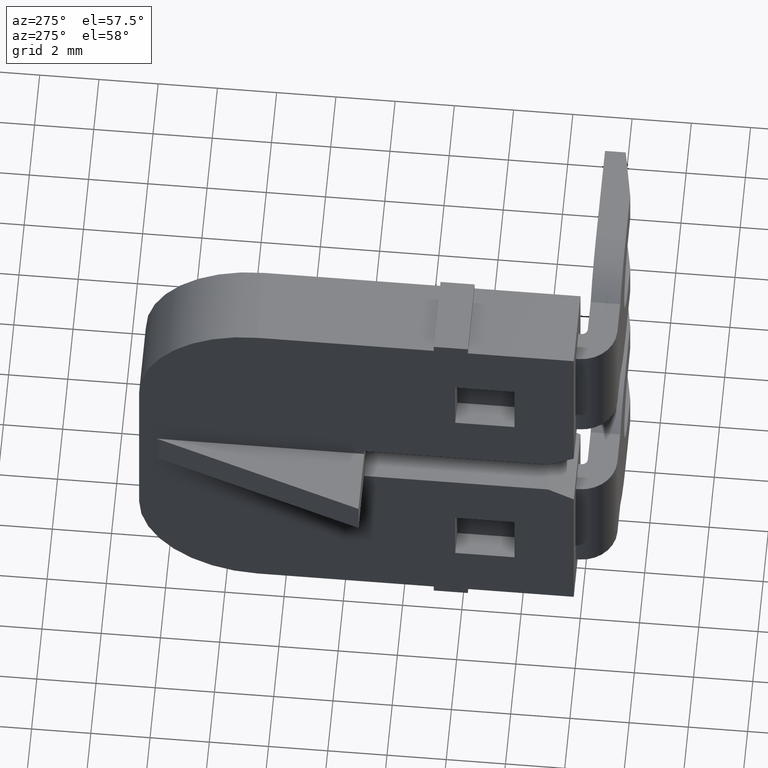
[diagram: clean part render]
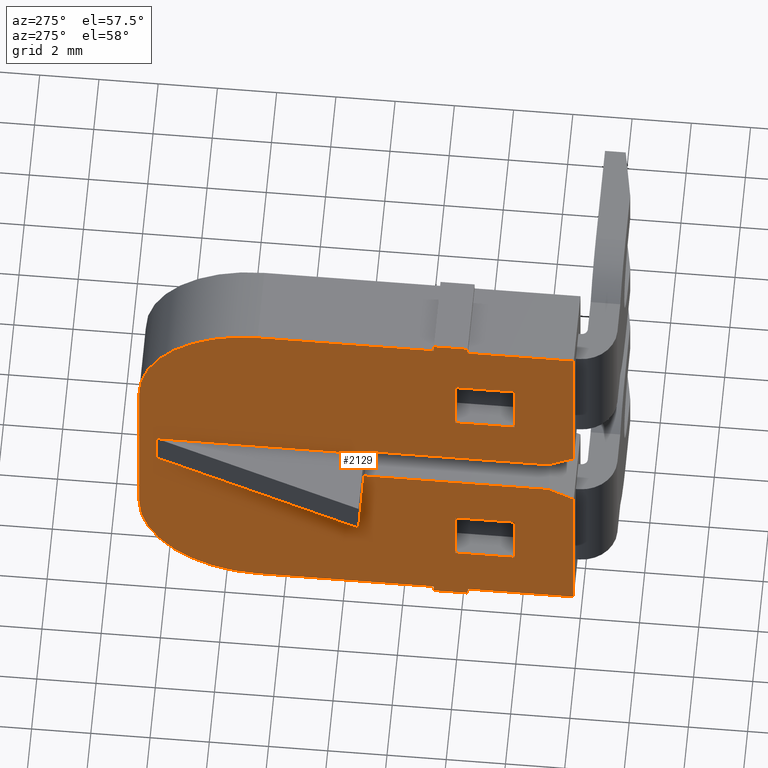
[diagram: same view with one face highlighted and labeled with its STEP entity id]
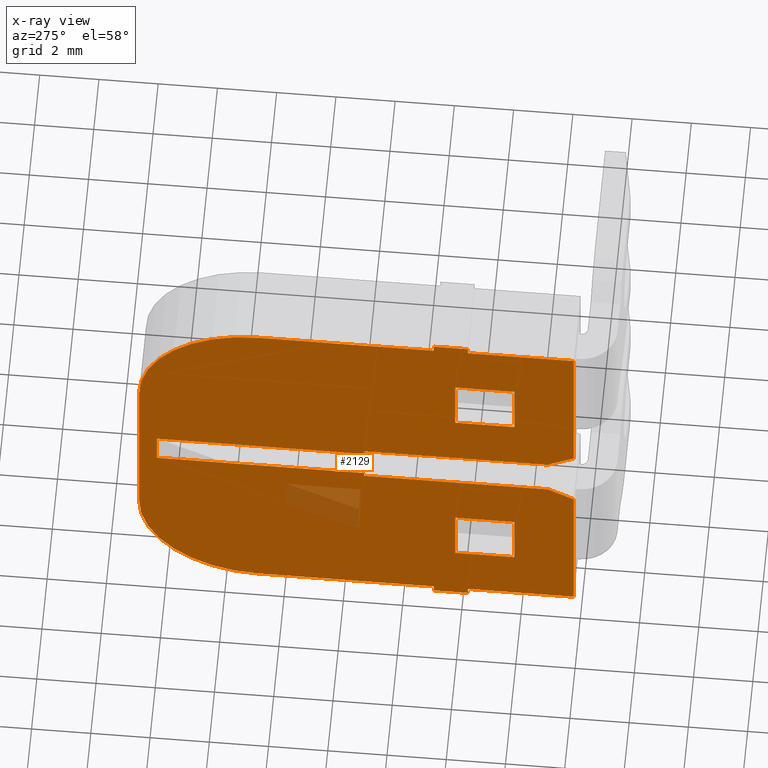
[diagram: x-ray of the same camera — body ghosted, the highlighted face saturated]
A machine part, auxiliary view. The second image highlights one B-rep face of the part: STEP entity #2129.
The next image is the same camera in x-ray: the body ghosted, the highlighted face saturated — about 2% of this face is hidden behind the body in this view.
In plain terms, the highlighted planar face has unit normal (1, 0, -0).
Its self-contained STEP definition (entity closure, byte-faithful):
#1 = LINE ( 'NONE', #66, #764 ) ;
#10 = DIRECTION ( 'NONE',  ( 3.538835890992685300E-015, -1.000000000000000000, -1.096746120591573800E-016 ) ) ;
#28 = LINE ( 'NONE', #37, #744 ) ;
#37 = CARTESIAN_POINT ( 'NONE',  ( 1472.445209356659900, 1087.334526901996000, 0.5749999999999999600 ) ) ;
#53 = DIRECTION ( 'NONE',  ( 3.250333119651810100E-015, -2.521813793386570200E-016, 1.000000000000000000 ) ) ;
#62 = CARTESIAN_POINT ( 'NONE',  ( 1472.445209356659900, 1094.934526901996200, 2.949999999999999700 ) ) ;
#66 = CARTESIAN_POINT ( 'NONE',  ( 1472.445209356664000, 1080.259529724810100, 7.349999999999999600 ) ) ;
#77 = LINE ( 'NONE', #78, #666 ) ;
#78 = CARTESIAN_POINT ( 'NONE',  ( 1472.445209356659900, 1094.934526901996200, -7.399999999999999500 ) ) ;
#79 = DIRECTION ( 'NONE',  ( 3.538835890992685300E-015, -1.000000000000000000, 7.422753022654887400E-029 ) ) ;
#83 = LINE ( 'NONE', #62, #749 ) ;
#88 = DIRECTION ( 'NONE',  ( -3.538835890992685300E-015, 1.000000000000000000, 1.150239550150604000E-029 ) ) ;
#100 = LINE ( 'NONE', #139, #689 ) ;
#101 = DIRECTION ( 'NONE',  ( 3.663735981263015800E-015, -1.000000000000000000, -1.096746120591567900E-016 ) ) ;
#104 = LINE ( 'NONE', #118, #460 ) ;
#110 = LINE ( 'NONE', #119, #765 ) ;
#112 = DIRECTION ( 'NONE',  ( 4.798054992358783100E-015, -0.8660254037844383700, 0.5000000000000003300 ) ) ;
#118 = CARTESIAN_POINT ( 'NONE',  ( 1472.445209356664000, 1080.259529724810100, 1.250000000000000000 ) ) ;
#119 = CARTESIAN_POINT ( 'NONE',  ( 1472.445209356659900, 1094.934526901996200, 0.7500000000000000000 ) ) ;
#123 = CARTESIAN_POINT ( 'NONE',  ( 1472.445209356659900, 1082.259529724810100, 5.150000000000000400 ) ) ;
#125 = CARTESIAN_POINT ( 'NONE',  ( 1472.445209356659900, 1090.934526901996200, 3.350000000000000100 ) ) ;
#131 = DIRECTION ( 'NONE',  ( 3.538835890992685300E-015, -1.000000000000000000, -1.225863708862687000E-029 ) ) ;
#139 = CARTESIAN_POINT ( 'NONE',  ( 1472.445209356659900, 1094.934526901996200, 7.349999999999999600 ) ) ;
#148 = CARTESIAN_POINT ( 'NONE',  ( 1472.445209356659900, 1087.334526901996000, -0.6249999999999987800 ) ) ;
#149 = CARTESIAN_POINT ( 'NONE',  ( 1472.445209356659900, 1082.259529724810100, 2.949999999999999700 ) ) ;
#150 = DIRECTION ( 'NONE',  ( -1.000000000000000000, -3.538835890992685300E-015, 3.497202527569245500E-015 ) ) ;
#154 = CARTESIAN_POINT ( 'NONE',  ( 1472.445209356659900, 1082.259529724810100, -3.000000000000104800 ) ) ;
#159 = CARTESIAN_POINT ( 'NONE',  ( 1472.445209356659900, 1090.934526901996200, -7.400000000000000400 ) ) ;
#165 = CARTESIAN_POINT ( 'NONE',  ( 1472.445209356659900, 1080.259529724810100, 7.349999999999999600 ) ) ;
#168 = CARTESIAN_POINT ( 'NONE',  ( 1472.445209356659900, 1082.259529724810100, -5.200000000000110300 ) ) ;
#173 = CARTESIAN_POINT ( 'NONE',  ( 1472.445209356659900, 1094.334526901996000, -0.6250000000000007800 ) ) ;
#174 = CARTESIAN_POINT ( 'NONE',  ( 1472.445209356659900, 1094.934526901996200, 3.350000000000009400 ) ) ;
#183 = CARTESIAN_POINT ( 'NONE',  ( 1472.445209356664000, 1080.259529724810100, 1.250000000000000000 ) ) ;
#188 = DIRECTION ( 'NONE',  ( 0.0000000000000000000, 1.000000000000000000, 8.673617379884027600E-016 ) ) ;
#190 = CARTESIAN_POINT ( 'NONE',  ( 1472.445209356659900, 1087.334526901996000, 0.7500000000000000000 ) ) ;
#200 = CARTESIAN_POINT ( 'NONE',  ( 1472.445209356659900, 1083.834526901990100, 7.349999999999999600 ) ) ;
#203 = CARTESIAN_POINT ( 'NONE',  ( 1472.445209356664000, 1080.259529724810100, -1.300000000000000000 ) ) ;
#214 = CARTESIAN_POINT ( 'NONE',  ( 1472.445209356659900, 1094.334526901996000, 0.5750000000000007300 ) ) ;
#215 = CARTESIAN_POINT ( 'NONE',  ( 1472.445209356659900, 1090.934526901996200, 7.349999999999999600 ) ) ;
#216 = CARTESIAN_POINT ( 'NONE',  ( 1472.445209356659900, 1084.259529724810100, 2.949999999999999700 ) ) ;
#221 = CARTESIAN_POINT ( 'NONE',  ( 1472.445209356659900, 1084.259529724810100, 5.150000000000000400 ) ) ;
#226 = CARTESIAN_POINT ( 'NONE',  ( 1472.445209356659900, 1094.934526901996200, -3.399999999999991900 ) ) ;
#228 = CARTESIAN_POINT ( 'NONE',  ( 1472.445209356659900, 1084.984526901990000, 7.600000000000013900 ) ) ;
#230 = CARTESIAN_POINT ( 'NONE',  ( 1472.445209356659900, 1083.834526901990100, -7.400000000000000400 ) ) ;
#231 = CARTESIAN_POINT ( 'NONE',  ( 1472.445209356659900, 1087.334526901996000, 0.5749999999999999600 ) ) ;
#232 = CARTESIAN_POINT ( 'NONE',  ( 1472.445209356664000, 1081.125555128594000, -0.8000000000000090400 ) ) ;
#233 = CARTESIAN_POINT ( 'NONE',  ( 1472.445209356659900, 1084.984526901990000, -7.649999999999986100 ) ) ;
#238 = CARTESIAN_POINT ( 'NONE',  ( 1472.445209356659900, 1084.259529724810100, -5.200000000000110300 ) ) ;
#243 = CARTESIAN_POINT ( 'NONE',  ( 1472.445209356659900, 1084.984526901990000, 7.349999999999999600 ) ) ;
#247 = CARTESIAN_POINT ( 'NONE',  ( 1472.445209356659900, 1087.334526901996000, -0.8000000000000090400 ) ) ;
#252 = CARTESIAN_POINT ( 'NONE',  ( 1472.445209356664000, 1081.125555128594000, 0.7500000000000000000 ) ) ;
#258 = CARTESIAN_POINT ( 'NONE',  ( 1472.445209356659900, 1084.984526901990000, -7.400000000000000400 ) ) ;
#259 = CARTESIAN_POINT ( 'NONE',  ( 1472.445209356659900, 1084.259529724810100, -3.000000000000104800 ) ) ;
#274 = CARTESIAN_POINT ( 'NONE',  ( 1472.445209356659900, 1083.834526901990100, -7.649999999999986100 ) ) ;
#325 = CARTESIAN_POINT ( 'NONE',  ( 1472.445209356659900, 1083.834526901990100, 7.600000000000013900 ) ) ;
#327 = CARTESIAN_POINT ( 'NONE',  ( 1472.445209356659900, 1080.259529724810100, -7.400000000000000400 ) ) ;
#386 = VECTOR ( 'NONE', #2659, 1000.000000000000000 ) ;
#387 = VECTOR ( 'NONE', #2612, 1000.000000000000000 ) ;
#392 = VECTOR ( 'NONE', #2646, 1000.000000000000000 ) ;
#393 = VECTOR ( 'NONE', #2635, 1000.000000000000000 ) ;
#397 = VECTOR ( 'NONE', #2649, 1000.000000000000000 ) ;
#400 = VECTOR ( 'NONE', #1312, 1000.000000000000000 ) ;
#411 = VECTOR ( 'NONE', #1338, 1000.000000000000000 ) ;
#416 = VECTOR ( 'NONE', #1319, 1000.000000000000000 ) ;
#420 = VECTOR ( 'NONE', #2624, 1000.000000000000000 ) ;
#423 = VECTOR ( 'NONE', #1454, 1000.000000000000000 ) ;
#429 = AXIS2_PLACEMENT_3D ( 'NONE', #1392, #1385, #1355 ) ;
#431 = VECTOR ( 'NONE', #1383, 1000.000000000000000 ) ;
#432 = VECTOR ( 'NONE', #1420, 1000.000000000000000 ) ;
#433 = VECTOR ( 'NONE', #1374, 1000.000000000000000 ) ;
#439 = VECTOR ( 'NONE', #1434, 1000.000000000000000 ) ;
#447 = VECTOR ( 'NONE', #1307, 1000.000000000000000 ) ;
#451 = VECTOR ( 'NONE', #1310, 1000.000000000000000 ) ;
#456 = VECTOR ( 'NONE', #1366, 1000.000000000000000 ) ;
#460 = VECTOR ( 'NONE', #112, 1000.000000000000100 ) ;
#473 = CIRCLE ( 'NONE', #429, 4.000000000000003600 ) ;
#502 = VECTOR ( 'NONE', #1574, 1000.000000000000000 ) ;
#507 = VECTOR ( 'NONE', #1497, 1000.000000000000100 ) ;
#525 = VECTOR ( 'NONE', #1601, 1000.000000000000000 ) ;
#527 = VECTOR ( 'NONE', #1534, 1000.000000000000000 ) ;
#628 = VECTOR ( 'NONE', #1167, 1000.000000000000000 ) ;
#666 = VECTOR ( 'NONE', #79, 1000.000000000000000 ) ;
#671 = AXIS2_PLACEMENT_3D ( 'NONE', #1016, #1029, #1032 ) ;
#689 = VECTOR ( 'NONE', #131, 1000.000000000000000 ) ;
#721 = VECTOR ( 'NONE', #1222, 1000.000000000000000 ) ;
#744 = VECTOR ( 'NONE', #10, 1000.000000000000000 ) ;
#749 = VECTOR ( 'NONE', #88, 1000.000000000000000 ) ;
#764 = VECTOR ( 'NONE', #53, 1000.000000000000000 ) ;
#765 = VECTOR ( 'NONE', #101, 1000.000000000000000 ) ;
#997 = FACE_BOUND ( 'NONE', #2694, .T. ) ;
#1012 = FACE_BOUND ( 'NONE', #2720, .T. ) ;
#1016 = CARTESIAN_POINT ( 'NONE',  ( 1472.445209356659900, 1094.934526901996200, 7.349999999999999600 ) ) ;
#1029 = DIRECTION ( 'NONE',  ( 1.000000000000000000, 3.538835890992685300E-015, -3.497202527569244700E-015 ) ) ;
#1031 = PLANE ( 'NONE',  #671 ) ;
#1032 = DIRECTION ( 'NONE',  ( -3.497202527569245500E-015, 2.468694079174335000E-016, -1.000000000000000000 ) ) ;
#1043 = FACE_OUTER_BOUND ( 'NONE', #2680, .T. ) ;
#1151 = CARTESIAN_POINT ( 'NONE',  ( 1472.445209356659900, 1082.259529724810100, 23.65000000000000200 ) ) ;
#1154 = LINE ( 'NONE', #1151, #628 ) ;
#1167 = DIRECTION ( 'NONE',  ( -3.497202527569245500E-015, -1.237602582263238000E-029, -1.000000000000000000 ) ) ;
#1213 = LINE ( 'NONE', #1214, #721 ) ;
#1214 = CARTESIAN_POINT ( 'NONE',  ( 1472.445209356659900, 1082.259529724810100, 7.349999999999999600 ) ) ;
#1222 = DIRECTION ( 'NONE',  ( -3.497202527569245500E-015, -1.237602582263238000E-029, -1.000000000000000000 ) ) ;
#1306 = LINE ( 'NONE', #1331, #447 ) ;
#1307 = DIRECTION ( 'NONE',  ( -3.538835890992685300E-015, 1.000000000000000000, 1.225863708862687000E-029 ) ) ;
#1308 = CARTESIAN_POINT ( 'NONE',  ( 1472.445209356659900, 1094.934526901996200, -7.400000000000000400 ) ) ;
#1309 = LINE ( 'NONE', #1335, #400 ) ;
#1310 = DIRECTION ( 'NONE',  ( -3.538835890992685300E-015, 1.000000000000000000, -7.422753022654887400E-029 ) ) ;
#1312 = DIRECTION ( 'NONE',  ( 3.538835890992685300E-015, -1.000000000000000000, -1.150239550150604000E-029 ) ) ;
#1317 = CARTESIAN_POINT ( 'NONE',  ( 1472.445209356659900, 1084.259529724810100, 23.65000000000000200 ) ) ;
#1319 = DIRECTION ( 'NONE',  ( -3.250333119651810100E-015, -2.521813793387420200E-016, -1.000000000000000000 ) ) ;
#1320 = LINE ( 'NONE', #1317, #411 ) ;
#1321 = LINE ( 'NONE', #1308, #451 ) ;
#1331 = CARTESIAN_POINT ( 'NONE',  ( 1472.445209356659900, 1094.934526901996200, 7.349999999999999600 ) ) ;
#1335 = CARTESIAN_POINT ( 'NONE',  ( 1472.445209356659900, 1094.934526901996200, -3.000000000000104800 ) ) ;
#1336 = LINE ( 'NONE', #1340, #416 ) ;
#1338 = DIRECTION ( 'NONE',  ( 3.497202527569245500E-015, 1.237602582263238000E-029, 1.000000000000000000 ) ) ;
#1340 = CARTESIAN_POINT ( 'NONE',  ( 1472.445209356659900, 1087.334526901996000, -7.400000000000000400 ) ) ;
#1346 = LINE ( 'NONE', #1369, #456 ) ;
#1352 = CARTESIAN_POINT ( 'NONE',  ( 1472.445209356659900, 1083.834526901990100, 7.007525834918880000 ) ) ;
#1355 = DIRECTION ( 'NONE',  ( 0.0000000000000000000, 1.000000000000000000, 0.0000000000000000000 ) ) ;
#1364 = LINE ( 'NONE', #1380, #431 ) ;
#1366 = DIRECTION ( 'NONE',  ( 3.497202527569245500E-015, 1.237602582263238000E-029, 1.000000000000000000 ) ) ;
#1369 = CARTESIAN_POINT ( 'NONE',  ( 1472.445209356659900, 1084.259529724810100, 7.349999999999999600 ) ) ;
#1374 = DIRECTION ( 'NONE',  ( 0.0000000000000000000, 0.0000000000000000000, 1.000000000000000000 ) ) ;
#1380 = CARTESIAN_POINT ( 'NONE',  ( 1472.445209356659900, 1084.984526901990000, 7.450000000000000200 ) ) ;
#1383 = DIRECTION ( 'NONE',  ( 0.0000000000000000000, 0.0000000000000000000, -1.000000000000000000 ) ) ;
#1384 = LINE ( 'NONE', #1352, #433 ) ;
#1385 = DIRECTION ( 'NONE',  ( -1.000000000000000000, -3.538835890992685300E-015, 3.497202527569245500E-015 ) ) ;
#1392 = CARTESIAN_POINT ( 'NONE',  ( 1472.445209356659900, 1090.934526901996200, -3.399999999999999900 ) ) ;
#1415 = CARTESIAN_POINT ( 'NONE',  ( 1472.445209356659900, 1094.334526901996000, -0.5500000000000000400 ) ) ;
#1420 = DIRECTION ( 'NONE',  ( 0.0000000000000000000, -1.000000000000000000, 0.0000000000000000000 ) ) ;
#1426 = LINE ( 'NONE', #1415, #439 ) ;
#1434 = DIRECTION ( 'NONE',  ( 3.190924781433425100E-015, -2.521813793386575100E-016, 1.000000000000000000 ) ) ;
#1437 = CARTESIAN_POINT ( 'NONE',  ( 1472.445209356659900, 1083.984526901990200, -7.649999999999999500 ) ) ;
#1444 = LINE ( 'NONE', #1437, #432 ) ;
#1452 = LINE ( 'NONE', #1453, #423 ) ;
#1453 = CARTESIAN_POINT ( 'NONE',  ( 1472.445209356659900, 1094.934526901996200, -5.200000000000110300 ) ) ;
#1454 = DIRECTION ( 'NONE',  ( -3.538835890992685300E-015, 1.000000000000000000, 1.150239550150604000E-029 ) ) ;
#1494 = LINE ( 'NONE', #1503, #507 ) ;
#1497 = DIRECTION ( 'NONE',  ( 1.547721872706970800E-015, -0.8660254037844383700, -0.5000000000000003300 ) ) ;
#1503 = CARTESIAN_POINT ( 'NONE',  ( 1472.445209356664000, 1080.259529724810100, -1.300000000000000000 ) ) ;
#1534 = DIRECTION ( 'NONE',  ( -3.250333119651810100E-015, -2.521813793387420200E-016, -1.000000000000000000 ) ) ;
#1536 = LINE ( 'NONE', #1563, #502 ) ;
#1547 = LINE ( 'NONE', #1579, #527 ) ;
#1563 = CARTESIAN_POINT ( 'NONE',  ( 1472.445209356659900, 1094.934526901996200, -0.8000000000000090400 ) ) ;
#1574 = DIRECTION ( 'NONE',  ( 3.663735981263015800E-015, -1.000000000000000000, 1.096746120592179900E-016 ) ) ;
#1579 = CARTESIAN_POINT ( 'NONE',  ( 1472.445209356664000, 1080.259529724810100, -7.400000000000000400 ) ) ;
#1600 = LINE ( 'NONE', #1620, #525 ) ;
#1601 = DIRECTION ( 'NONE',  ( 0.0000000000000000000, 1.000000000000000000, 0.0000000000000000000 ) ) ;
#1620 = CARTESIAN_POINT ( 'NONE',  ( 1472.445209356659900, 1083.984526901990200, 7.599999999999999600 ) ) ;
#1860 = EDGE_CURVE ( 'NONE', #2846, #2805, #2565, .T. ) ;
#1866 = EDGE_CURVE ( 'NONE', #2816, #2852, #2586, .T. ) ;
#1877 = EDGE_CURVE ( 'NONE', #2895, #2886, #2601, .T. ) ;
#1884 = EDGE_CURVE ( 'NONE', #2838, #2753, #2642, .T. ) ;
#1885 = EDGE_CURVE ( 'NONE', #2793, #2785, #2641, .T. ) ;
#1886 = EDGE_CURVE ( 'NONE', #2844, #2887, #2661, .T. ) ;
#1890 = EDGE_CURVE ( 'NONE', #2858, #2869, #1320, .T. ) ;
#1892 = EDGE_CURVE ( 'NONE', #2869, #2788, #1309, .T. ) ;
#1894 = EDGE_CURVE ( 'NONE', #2785, #2830, #1336, .T. ) ;
#1895 = EDGE_CURVE ( 'NONE', #2832, #2836, #1306, .T. ) ;
#1899 = EDGE_CURVE ( 'NONE', #2900, #2886, #1321, .T. ) ;
#1904 = EDGE_CURVE ( 'NONE', #2842, #2838, #1346, .T. ) ;
#1907 = EDGE_CURVE ( 'NONE', #2797, #2914, #1384, .T. ) ;
#1909 = EDGE_CURVE ( 'NONE', #2852, #2802, #473, .T. ) ;
#1917 = EDGE_CURVE ( 'NONE', #2878, #2832, #1364, .T. ) ;
#1924 = EDGE_CURVE ( 'NONE', #2887, #2895, #1444, .T. ) ;
#1928 = EDGE_CURVE ( 'NONE', #2793, #2860, #1426, .T. ) ;
#1946 = EDGE_CURVE ( 'NONE', #2826, #2858, #1452, .T. ) ;
#1960 = EDGE_CURVE ( 'NONE', #2853, #2818, #1494, .T. ) ;
#1968 = EDGE_CURVE ( 'NONE', #2818, #2900, #1547, .T. ) ;
#1975 = EDGE_CURVE ( 'NONE', #2830, #2853, #1536, .T. ) ;
#1985 = EDGE_CURVE ( 'NONE', #2914, #2878, #1600, .T. ) ;
#2129 = ADVANCED_FACE ( 'NONE', ( #1012, #1043, #997 ), #1031, .F. ) ;
#2156 = EDGE_CURVE ( 'NONE', #2788, #2826, #1154, .T. ) ;
#2178 = EDGE_CURVE ( 'NONE', #2753, #2803, #1213, .T. ) ;
#2203 = EDGE_CURVE ( 'NONE', #2860, #2846, #28, .T. ) ;
#2209 = EDGE_CURVE ( 'NONE', #2810, #2798, #1, .T. ) ;
#2210 = EDGE_CURVE ( 'NONE', #2803, #2842, #83, .T. ) ;
#2222 = EDGE_CURVE ( 'NONE', #2802, #2844, #77, .T. ) ;
#2226 = EDGE_CURVE ( 'NONE', #2805, #2859, #110, .T. ) ;
#2228 = EDGE_CURVE ( 'NONE', #2859, #2810, #104, .T. ) ;
#2230 = EDGE_CURVE ( 'NONE', #2797, #2798, #100, .T. ) ;
#2238 = EDGE_CURVE ( 'NONE', #2836, #2816, #2255, .T. ) ;
#2255 = CIRCLE ( 'NONE', #2259, 4.000000000000003600 ) ;
#2259 = AXIS2_PLACEMENT_3D ( 'NONE', #125, #150, #188 ) ;
#2565 = LINE ( 'NONE', #2595, #420 ) ;
#2586 = LINE ( 'NONE', #2619, #387 ) ;
#2595 = CARTESIAN_POINT ( 'NONE',  ( 1472.445209356659900, 1087.334526901996000, 7.349999999999999600 ) ) ;
#2601 = LINE ( 'NONE', #2609, #392 ) ;
#2609 = CARTESIAN_POINT ( 'NONE',  ( 1472.445209356659900, 1083.834526901990100, -7.057525834918890500 ) ) ;
#2612 = DIRECTION ( 'NONE',  ( -3.497202527569245500E-015, -9.239259932875879000E-031, -1.000000000000000000 ) ) ;
#2619 = CARTESIAN_POINT ( 'NONE',  ( 1472.445209356659900, 1094.934526901996200, 7.349999999999999600 ) ) ;
#2624 = DIRECTION ( 'NONE',  ( 3.250333119651810100E-015, -2.521813793386570200E-016, 1.000000000000000000 ) ) ;
#2635 = DIRECTION ( 'NONE',  ( 3.538835890992685300E-015, -1.000000000000000000, -1.150239550150604000E-029 ) ) ;
#2639 = CARTESIAN_POINT ( 'NONE',  ( 1472.445209356659900, 1094.934526901996200, 5.150000000000000400 ) ) ;
#2641 = LINE ( 'NONE', #2643, #397 ) ;
#2642 = LINE ( 'NONE', #2639, #393 ) ;
#2643 = CARTESIAN_POINT ( 'NONE',  ( 1472.445209356659900, 1087.334526901996000, -0.6250000000000000000 ) ) ;
#2646 = DIRECTION ( 'NONE',  ( 0.0000000000000000000, 0.0000000000000000000, 1.000000000000000000 ) ) ;
#2649 = DIRECTION ( 'NONE',  ( 3.538835890992685300E-015, -1.000000000000000000, 1.096746120592191800E-016 ) ) ;
#2658 = CARTESIAN_POINT ( 'NONE',  ( 1472.445209356659900, 1084.984526901990000, -7.500000000000000000 ) ) ;
#2659 = DIRECTION ( 'NONE',  ( 0.0000000000000000000, 0.0000000000000000000, -1.000000000000000000 ) ) ;
#2661 = LINE ( 'NONE', #2658, #386 ) ;
#2680 = EDGE_LOOP ( 'NONE', ( #3141, #3054, #3094, #3175, #3119, #3129, #3120, #3168, #3131, #3135, #3130, #3143, #3152, #3124, #3139, #3114, #3136, #3176, #3151, #3173, #3125, #3127, #3133, #3149 ) ) ;
#2694 = EDGE_LOOP ( 'NONE', ( #3128, #3115, #3166, #3126 ) ) ;
#2720 = EDGE_LOOP ( 'NONE', ( #3080, #3074, #3053, #3110 ) ) ;
#2753 = VERTEX_POINT ( 'NONE', #123 ) ;
#2785 = VERTEX_POINT ( 'NONE', #148 ) ;
#2788 = VERTEX_POINT ( 'NONE', #154 ) ;
#2793 = VERTEX_POINT ( 'NONE', #173 ) ;
#2797 = VERTEX_POINT ( 'NONE', #200 ) ;
#2798 = VERTEX_POINT ( 'NONE', #165 ) ;
#2802 = VERTEX_POINT ( 'NONE', #159 ) ;
#2803 = VERTEX_POINT ( 'NONE', #149 ) ;
#2805 = VERTEX_POINT ( 'NONE', #190 ) ;
#2810 = VERTEX_POINT ( 'NONE', #183 ) ;
#2816 = VERTEX_POINT ( 'NONE', #174 ) ;
#2818 = VERTEX_POINT ( 'NONE', #203 ) ;
#2826 = VERTEX_POINT ( 'NONE', #168 ) ;
#2830 = VERTEX_POINT ( 'NONE', #247 ) ;
#2832 = VERTEX_POINT ( 'NONE', #243 ) ;
#2836 = VERTEX_POINT ( 'NONE', #215 ) ;
#2838 = VERTEX_POINT ( 'NONE', #221 ) ;
#2842 = VERTEX_POINT ( 'NONE', #216 ) ;
#2844 = VERTEX_POINT ( 'NONE', #258 ) ;
#2846 = VERTEX_POINT ( 'NONE', #231 ) ;
#2852 = VERTEX_POINT ( 'NONE', #226 ) ;
#2853 = VERTEX_POINT ( 'NONE', #232 ) ;
#2858 = VERTEX_POINT ( 'NONE', #238 ) ;
#2859 = VERTEX_POINT ( 'NONE', #252 ) ;
#2860 = VERTEX_POINT ( 'NONE', #214 ) ;
#2869 = VERTEX_POINT ( 'NONE', #259 ) ;
#2878 = VERTEX_POINT ( 'NONE', #228 ) ;
#2886 = VERTEX_POINT ( 'NONE', #230 ) ;
#2887 = VERTEX_POINT ( 'NONE', #233 ) ;
#2895 = VERTEX_POINT ( 'NONE', #274 ) ;
#2900 = VERTEX_POINT ( 'NONE', #327 ) ;
#2914 = VERTEX_POINT ( 'NONE', #325 ) ;
#3053 = ORIENTED_EDGE ( 'NONE', *, *, #2178, .T. ) ;
#3054 = ORIENTED_EDGE ( 'NONE', *, *, #1886, .T. ) ;
#3074 = ORIENTED_EDGE ( 'NONE', *, *, #1884, .T. ) ;
#3080 = ORIENTED_EDGE ( 'NONE', *, *, #1904, .T. ) ;
#3094 = ORIENTED_EDGE ( 'NONE', *, *, #1924, .T. ) ;
#3110 = ORIENTED_EDGE ( 'NONE', *, *, #2210, .T. ) ;
#3114 = ORIENTED_EDGE ( 'NONE', *, *, #2209, .T. ) ;
#3115 = ORIENTED_EDGE ( 'NONE', *, *, #1892, .T. ) ;
#3119 = ORIENTED_EDGE ( 'NONE', *, *, #1899, .F. ) ;
#3120 = ORIENTED_EDGE ( 'NONE', *, *, #1960, .F. ) ;
#3124 = ORIENTED_EDGE ( 'NONE', *, *, #2226, .T. ) ;
#3125 = ORIENTED_EDGE ( 'NONE', *, *, #1895, .T. ) ;
#3126 = ORIENTED_EDGE ( 'NONE', *, *, #1946, .T. ) ;
#3127 = ORIENTED_EDGE ( 'NONE', *, *, #2238, .T. ) ;
#3128 = ORIENTED_EDGE ( 'NONE', *, *, #1890, .T. ) ;
#3129 = ORIENTED_EDGE ( 'NONE', *, *, #1968, .F. ) ;
#3130 = ORIENTED_EDGE ( 'NONE', *, *, #1928, .T. ) ;
#3131 = ORIENTED_EDGE ( 'NONE', *, *, #1894, .F. ) ;
#3133 = ORIENTED_EDGE ( 'NONE', *, *, #1866, .T. ) ;
#3135 = ORIENTED_EDGE ( 'NONE', *, *, #1885, .F. ) ;
#3136 = ORIENTED_EDGE ( 'NONE', *, *, #2230, .F. ) ;
#3139 = ORIENTED_EDGE ( 'NONE', *, *, #2228, .T. ) ;
#3141 = ORIENTED_EDGE ( 'NONE', *, *, #2222, .T. ) ;
#3143 = ORIENTED_EDGE ( 'NONE', *, *, #2203, .T. ) ;
#3149 = ORIENTED_EDGE ( 'NONE', *, *, #1909, .T. ) ;
#3151 = ORIENTED_EDGE ( 'NONE', *, *, #1985, .T. ) ;
#3152 = ORIENTED_EDGE ( 'NONE', *, *, #1860, .T. ) ;
#3166 = ORIENTED_EDGE ( 'NONE', *, *, #2156, .T. ) ;
#3168 = ORIENTED_EDGE ( 'NONE', *, *, #1975, .F. ) ;
#3173 = ORIENTED_EDGE ( 'NONE', *, *, #1917, .T. ) ;
#3175 = ORIENTED_EDGE ( 'NONE', *, *, #1877, .T. ) ;
#3176 = ORIENTED_EDGE ( 'NONE', *, *, #1907, .T. ) ;